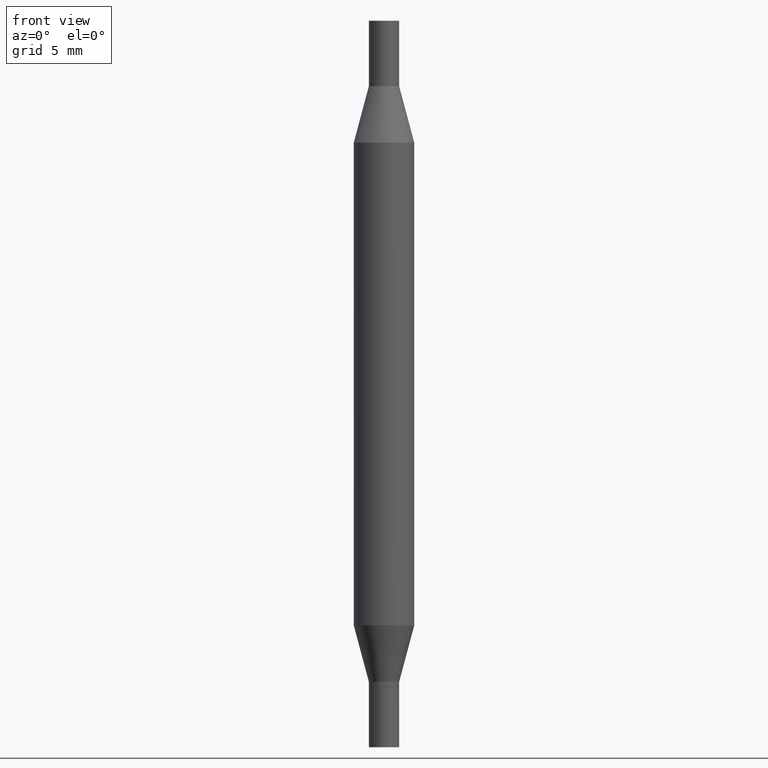
[diagram: clean part render]
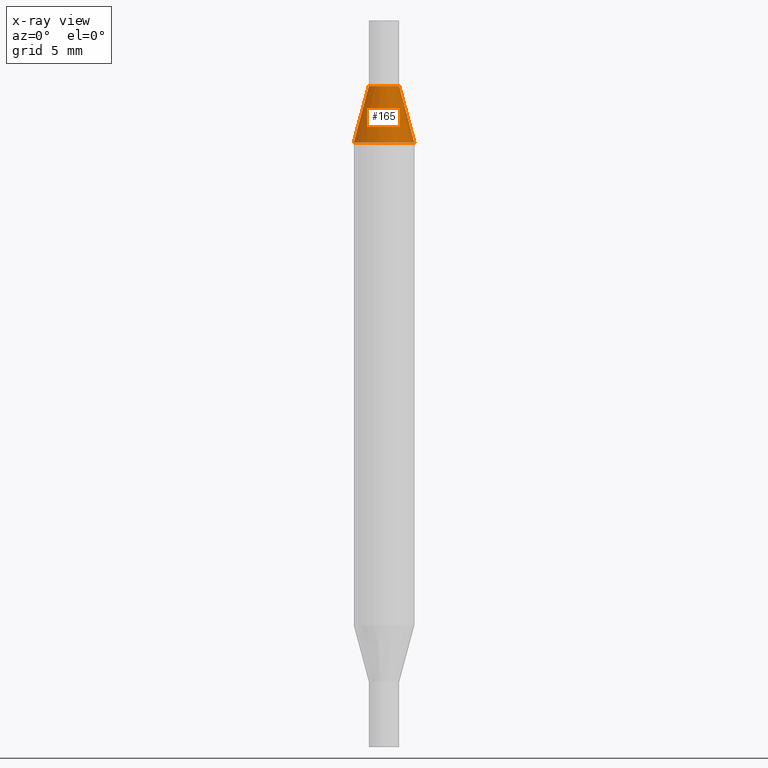
[diagram: x-ray — body ghosted, one internal face saturated and labeled with its STEP entity id]
A machine part, front view, then the same camera in x-ray: the body is ghosted and one INTERNAL B-rep face — a face not visible from any outside direction — is saturated and labeled: STEP entity #165.
In plain terms, the highlighted conical surface has half-angle 15 deg.
Its self-contained STEP definition (entity closure, byte-faithful):
#27 = EDGE_CURVE ( 'NONE', #750, #257, #95, .T. ) ;
#47 = CARTESIAN_POINT ( 'NONE',  ( -0.03124999999999964265, -2.401742340998448159E-16, -0.1350000000000003419 ) ) ;
#48 = DIRECTION ( 'NONE',  ( 1.000000000000000000, -6.982962677686265133E-15, 0.000000000000000000 ) ) ;
#56 = EDGE_CURVE ( 'NONE', #637, #100, #529, .T. ) ;
#70 = EDGE_CURVE ( 'NONE', #257, #100, #103, .T. ) ;
#95 = LINE ( 'NONE', #396, #563 ) ;
#100 = VERTEX_POINT ( 'NONE', #951 ) ;
#101 = ORIENTED_EDGE ( 'NONE', *, *, #56, .F. ) ;
#103 = CIRCLE ( 'NONE', #970, 0.06250000000000000000 ) ;
#140 = CARTESIAN_POINT ( 'NONE',  ( 3.338064920442711275E-29, -4.711508707312691437E-16, -0.1350000000000003419 ) ) ;
#165 = ADVANCED_FACE ( 'NONE', ( #285 ), #939, .T. ) ;
#180 = AXIS2_PLACEMENT_3D ( 'NONE', #339, #663, #48 ) ;
#246 = CARTESIAN_POINT ( 'NONE',  ( 0.03124999999999964265, -6.893684544089624146E-16, -0.1350000000000003419 ) ) ;
#257 = VERTEX_POINT ( 'NONE', #803 ) ;
#285 = FACE_OUTER_BOUND ( 'NONE', #556, .T. ) ;
#339 = CARTESIAN_POINT ( 'NONE',  ( 3.338064920442711275E-29, -4.711508707312691437E-16, -0.1350000000000003419 ) ) ;
#363 = DIRECTION ( 'NONE',  ( -2.445468806185136597E-29, -3.491805094961124077E-15, -1.000000000000000000 ) ) ;
#387 = EDGE_CURVE ( 'NONE', #750, #637, #614, .T. ) ;
#396 = CARTESIAN_POINT ( 'NONE',  ( -0.03124999999999964265, -2.567603083009112476E-16, -0.1350000000000003419 ) ) ;
#459 = CARTESIAN_POINT ( 'NONE',  ( 3.052858238161216211E-29, -8.783881839976099214E-16, -0.2516265877365289061 ) ) ;
#529 = LINE ( 'NONE', #832, #565 ) ;
#554 = ORIENTED_EDGE ( 'NONE', *, *, #70, .T. ) ;
#556 = EDGE_LOOP ( 'NONE', ( #862, #911, #554, #101 ) ) ;
#563 = VECTOR ( 'NONE', #845, 39.37007874015748854 ) ;
#565 = VECTOR ( 'NONE', #837, 39.37007874015748854 ) ;
#614 = CIRCLE ( 'NONE', #180, 0.03124999999999964265 ) ;
#637 = VERTEX_POINT ( 'NONE', #246 ) ;
#663 = DIRECTION ( 'NONE',  ( 2.445468806185136597E-29, 3.491805094961124077E-15, 1.000000000000000000 ) ) ;
#664 = AXIS2_PLACEMENT_3D ( 'NONE', #140, #363, #887 ) ;
#750 = VERTEX_POINT ( 'NONE', #47 ) ;
#803 = CARTESIAN_POINT ( 'NONE',  ( -0.06250000000000000000, -4.496070591368893960E-16, -0.2516265877365289061 ) ) ;
#828 = DIRECTION ( 'NONE',  ( 1.000000000000000000, -6.982962677686266711E-15, 0.000000000000000000 ) ) ;
#832 = CARTESIAN_POINT ( 'NONE',  ( 0.03124999999999964265, -6.893684544089624146E-16, -0.1350000000000003419 ) ) ;
#837 = DIRECTION ( 'NONE',  ( 0.2588190451025211281, -5.180148453816004835E-15, -0.9659258262890679791 ) ) ;
#845 = DIRECTION ( 'NONE',  ( -0.2588190451025211281, -1.597197180879715312E-15, -0.9659258262890679791 ) ) ;
#862 = ORIENTED_EDGE ( 'NONE', *, *, #387, .F. ) ;
#887 = DIRECTION ( 'NONE',  ( 1.000000000000000000, -6.982962677686265133E-15, 0.000000000000000000 ) ) ;
#911 = ORIENTED_EDGE ( 'NONE', *, *, #27, .T. ) ;
#922 = DIRECTION ( 'NONE',  ( 2.445468806185136597E-29, 3.491805094961124077E-15, 1.000000000000000000 ) ) ;
#939 = CONICAL_SURFACE ( 'NONE', #664, 0.03124999999999964265, 0.2617993877991498519 ) ;
#951 = CARTESIAN_POINT ( 'NONE',  ( 0.06250000000000000000, -1.314823351353001887E-15, -0.2516265877365289061 ) ) ;
#970 = AXIS2_PLACEMENT_3D ( 'NONE', #459, #922, #828 ) ;